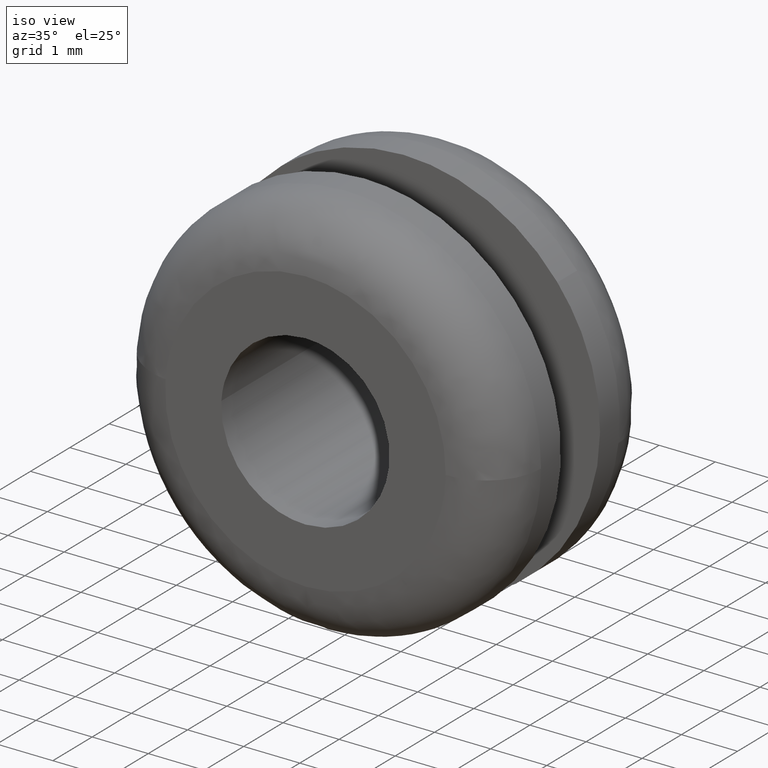
[diagram: clean part render]
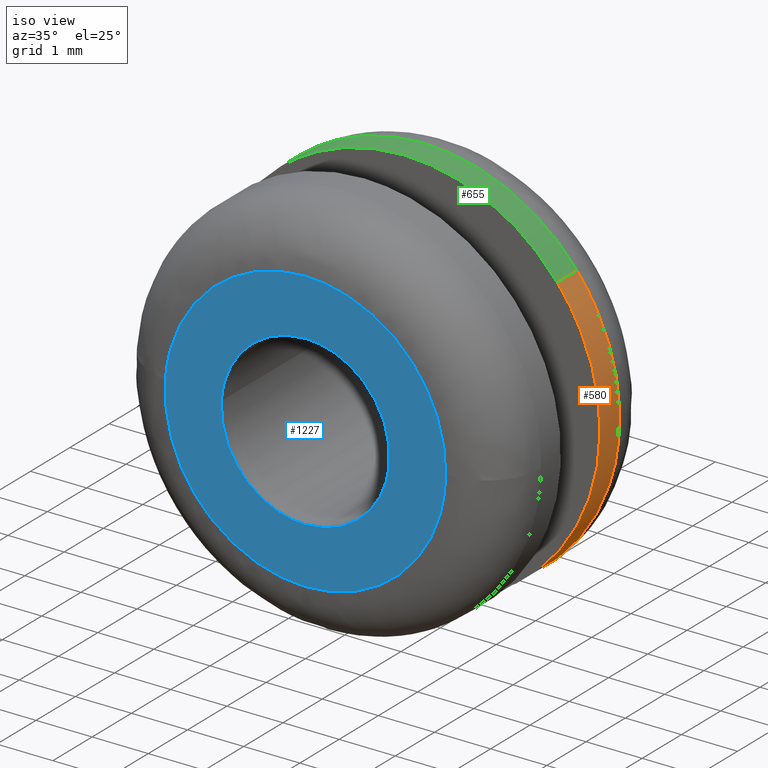
[diagram: same view with three faces highlighted in distinct colors, each labeled with its STEP entity id]
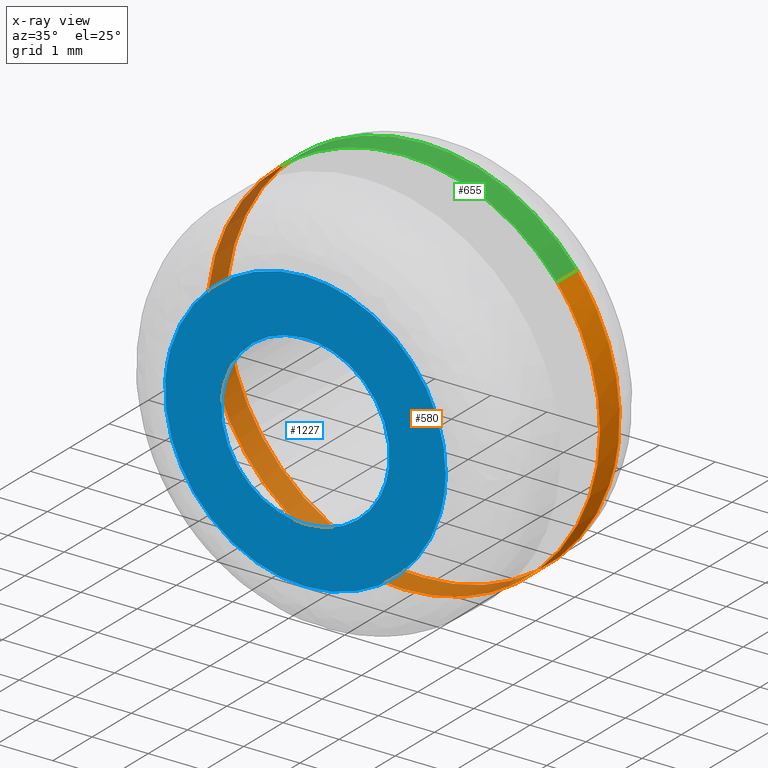
[diagram: x-ray of the same camera — body ghosted, the three highlighted faces saturated]
A machine part, iso view with three faces highlighted in distinct colors.
The next image is the same camera in x-ray (body ghosted, the three faces saturated) — at least one of them is partly hidden behind the body in this view.
Their STEP definitions:

[orange] entity #580 — the highlighted face is a freeform B-spline surface patch.
#446=CARTESIAN_POINT('',(-2.178801228231668,3.012500000007188,2.739128548983447));
#447=CARTESIAN_POINT('',(-4.917929777215115,3.012500000007187,0.560327320751779));
#448=CARTESIAN_POINT('',(-2.739128548983448,3.012500000007188,-2.178801228231668));
#449=CARTESIAN_POINT('',(-0.560327320751780,3.012500000007187,-4.917929777215116));
#450=CARTESIAN_POINT('',(2.178801228231668,3.012500000007188,-2.739128548983448));
#451=CARTESIAN_POINT('',(4.917929777215115,3.012500000007187,-0.560327320751780));
#452=CARTESIAN_POINT('',(2.739128548983448,3.012500000007188,2.178801228231667));
#453=CARTESIAN_POINT('',(-2.178801228231668,2.487187499999820,2.739128548983447));
#454=CARTESIAN_POINT('',(-4.917929777215115,2.487187499999820,0.560327320751779));
#455=CARTESIAN_POINT('',(-2.739128548983448,2.487187499999820,-2.178801228231668));
#456=CARTESIAN_POINT('',(-0.560327320751780,2.487187499999820,-4.917929777215116));
#457=CARTESIAN_POINT('',(2.178801228231668,2.487187499999820,-2.739128548983448));
#458=CARTESIAN_POINT('',(4.917929777215115,2.487187499999820,-0.560327320751780));
#459=CARTESIAN_POINT('',(2.739128548983448,2.487187499999820,2.178801228231667));
#467=(BOUNDED_SURFACE()B_SPLINE_SURFACE(2,1,((#446,#453),(#447,#454),(#448,#455),(#449,#456),(#450,#457),(#451,#458),(#452,#459)),.UNSPECIFIED.,.F.,.F.,.U.)B_SPLINE_SURFACE_WITH_KNOTS((3,2,2,3),(2,2),(0.0,5.798989873223329,11.597979746446660,17.396969619669989),(0.0,1.0),.UNSPECIFIED.)GEOMETRIC_REPRESENTATION_ITEM()RATIONAL_B_SPLINE_SURFACE(((1.0,1.0),(0.707106781186548,0.707106781186548),(1.0,1.0),(0.707106781186548,0.707106781186548),(1.0,1.0),(0.707106781186548,0.707106781186548),(1.0,1.0)))REPRESENTATION_ITEM('')SURFACE());
#468=CARTESIAN_POINT('',(-2.178800832572884,3.000000000001514,2.739128863704560));
#469=VERTEX_POINT('',#468);
#470=CARTESIAN_POINT('',(-3.499999999999999,3.000000000007013,6.637321E-016));
#471=VERTEX_POINT('',#470);
#472=CARTESIAN_POINT('',(-2.178800832572885,3.000000000001514,2.739128863704560));
#473=CARTESIAN_POINT('',(-3.499999999999992,3.000000000003630,1.688200216047647));
#474=CARTESIAN_POINT('',(-3.499999999999999,3.000000000007013,6.637321E-016));
#482=(BOUNDED_CURVE()B_SPLINE_CURVE(2,(#472,#473,#474),.UNSPECIFIED.,.F.,.U.)B_SPLINE_CURVE_WITH_KNOTS((3,3),(0.607863833660169,0.749999999999999),.UNSPECIFIED.)CURVE()GEOMETRIC_REPRESENTATION_ITEM()RATIONAL_B_SPLINE_CURVE((0.856305632691425,0.833477122923691,0.999999999999998))REPRESENTATION_ITEM(''));
#483=EDGE_CURVE('',#469,#471,#482,.T.);
#484=ORIENTED_EDGE('',*,*,#483,.T.);
#485=CARTESIAN_POINT('',(0.0,3.0,-3.500000000000000));
#486=VERTEX_POINT('',#485);
#487=CARTESIAN_POINT('',(-3.500000000000000,3.000000000007014,6.637321E-016));
#488=CARTESIAN_POINT('',(-3.500000000000001,3.0,-3.500000000000000));
#489=CARTESIAN_POINT('',(0.0,3.0,-3.500000000000000));
#497=(BOUNDED_CURVE()B_SPLINE_CURVE(2,(#487,#488,#489),.UNSPECIFIED.,.F.,.U.)B_SPLINE_CURVE_WITH_KNOTS((3,3),(0.750000000000000,1.0),.UNSPECIFIED.)CURVE()GEOMETRIC_REPRESENTATION_ITEM()RATIONAL_B_SPLINE_CURVE((1.0,0.707106781186547,1.0))REPRESENTATION_ITEM(''));
#498=EDGE_CURVE('',#471,#486,#497,.T.);
#499=ORIENTED_EDGE('',*,*,#498,.T.);
#500=CARTESIAN_POINT('',(3.476590735747605,3.000000000006980,-0.404124802646315));
#501=VERTEX_POINT('',#500);
#502=CARTESIAN_POINT('',(0.0,3.0,-3.500000000000000));
#503=CARTESIAN_POINT('',(3.116720952891494,3.0,-3.500000000000002));
#504=CARTESIAN_POINT('',(3.476590735747605,3.000000000006981,-0.404124802646315));
#512=(BOUNDED_CURVE()B_SPLINE_CURVE(2,(#502,#503,#504),.UNSPECIFIED.,.F.,.U.)B_SPLINE_CURVE_WITH_KNOTS((3,3),(0.0,0.229999999999849),.UNSPECIFIED.)CURVE()GEOMETRIC_REPRESENTATION_ITEM()RATIONAL_B_SPLINE_CURVE((1.0,0.730538238691801,0.956886118190362))REPRESENTATION_ITEM(''));
#513=EDGE_CURVE('',#486,#501,#512,.T.);
#514=ORIENTED_EDGE('',*,*,#513,.T.);
#515=CARTESIAN_POINT('',(2.739128864374870,2.999999999999987,2.178800831730190));
#516=VERTEX_POINT('',#515);
#517=CARTESIAN_POINT('',(3.476590735747605,3.000000000006981,-0.404124802646315));
#518=CARTESIAN_POINT('',(3.500000000000000,3.000000000000000,-0.202740401844141));
#519=CARTESIAN_POINT('',(3.500000000000000,3.0,-3.061516E-016));
#520=CARTESIAN_POINT('',(3.500000000000000,3.000000000000000,1.222254148548687));
#521=CARTESIAN_POINT('',(2.739128864374871,2.999999999999988,2.178800831730190));
#529=(BOUNDED_CURVE()B_SPLINE_CURVE(2,(#517,#518,#519,#520,#521),.UNSPECIFIED.,.F.,.U.)B_SPLINE_CURVE_WITH_KNOTS((3,2,3),(0.229999999999849,0.250000000000000,0.357863833567029),.UNSPECIFIED.)CURVE()GEOMETRIC_REPRESENTATION_ITEM()RATIONAL_B_SPLINE_CURVE((0.956886118190362,0.976568542494746,1.0,0.873629658371978,0.856305632721344))REPRESENTATION_ITEM(''));
#530=EDGE_CURVE('',#501,#516,#529,.T.);
#531=ORIENTED_EDGE('',*,*,#530,.T.);
#532=CARTESIAN_POINT('',(2.739128914882338,2.500000000000000,2.178800768233560));
#533=VERTEX_POINT('',#532);
#534=CARTESIAN_POINT('',(2.739128864374870,2.999999999999987,2.178800831730190));
#535=CARTESIAN_POINT('',(2.739128914882338,2.500000000000000,2.178800768233560));
#536=QUASI_UNIFORM_CURVE('',1,(#534,#535),.UNSPECIFIED.,.F.,.U.);
#537=EDGE_CURVE('',#516,#533,#536,.T.);
#538=ORIENTED_EDGE('',*,*,#537,.T.);
#539=CARTESIAN_POINT('',(0.0,2.500000000000000,-3.500000000000000));
#540=VERTEX_POINT('',#539);
#541=CARTESIAN_POINT('',(0.0,2.500000000000000,-3.500000000000000));
#542=CARTESIAN_POINT('',(3.500000000000000,2.500000000000000,-3.500000000000001));
#543=CARTESIAN_POINT('',(3.500000000000000,2.500000000000000,-3.061516E-016));
#544=CARTESIAN_POINT('',(3.500000000000000,2.500000000000000,1.222254057519584));
#545=CARTESIAN_POINT('',(2.739128914882338,2.500000000000000,2.178800768233560));
#553=(BOUNDED_CURVE()B_SPLINE_CURVE(2,(#541,#542,#543,#544,#545),.UNSPECIFIED.,.F.,.U.)B_SPLINE_CURVE_WITH_KNOTS((3,2,3),(0.0,0.250000000000000,0.357863826548889),.UNSPECIFIED.)CURVE()GEOMETRIC_REPRESENTATION_ITEM()RATIONAL_B_SPLINE_CURVE((1.0,0.707106781186547,1.0,0.873629666594239,0.856305634975713))REPRESENTATION_ITEM(''));
#554=EDGE_CURVE('',#540,#533,#553,.T.);
#555=ORIENTED_EDGE('',*,*,#554,.F.);
#556=CARTESIAN_POINT('',(-2.178800837339518,2.500000000000000,2.739128859913013));
#557=VERTEX_POINT('',#556);
#558=CARTESIAN_POINT('',(-2.178800837339518,2.500000000000000,2.739128859913013));
#559=CARTESIAN_POINT('',(-3.500000000000000,2.500000000000000,1.688200208539917));
#560=CARTESIAN_POINT('',(-3.500000000000000,2.500000000000000,-3.061516E-016));
#561=CARTESIAN_POINT('',(-3.500000000000000,2.500000000000000,-3.500000000000001));
#562=CARTESIAN_POINT('',(0.0,2.500000000000000,-3.500000000000000));
#570=(BOUNDED_CURVE()B_SPLINE_CURVE(2,(#558,#559,#560,#561,#562),.UNSPECIFIED.,.F.,.U.)B_SPLINE_CURVE_WITH_KNOTS((3,2,3),(0.607863834187015,0.750000000000000,1.0),.UNSPECIFIED.)CURVE()GEOMETRIC_REPRESENTATION_ITEM()RATIONAL_B_SPLINE_CURVE((0.856305632522192,0.833477123540928,1.0,0.707106781186547,1.0))REPRESENTATION_ITEM(''));
#571=EDGE_CURVE('',#557,#540,#570,.T.);
#572=ORIENTED_EDGE('',*,*,#571,.F.);
#573=CARTESIAN_POINT('',(-2.178800832572884,3.000000000001514,2.739128863704560));
#574=CARTESIAN_POINT('',(-2.178800837339518,2.500000000000000,2.739128859913013));
#575=QUASI_UNIFORM_CURVE('',1,(#573,#574),.UNSPECIFIED.,.F.,.U.);
#576=EDGE_CURVE('',#469,#557,#575,.T.);
#577=ORIENTED_EDGE('',*,*,#576,.F.);
#578=EDGE_LOOP('',(#484,#499,#514,#531,#538,#555,#572,#577));
#579=FACE_OUTER_BOUND('',#578,.T.);
#580=ADVANCED_FACE('',(#579),#467,.T.);

[blue] entity #1227 — the highlighted face is a freeform B-spline surface patch.
#701=CARTESIAN_POINT('',(1.489514386011977,-3.507253E-016,-0.177050540419096));
#702=VERTEX_POINT('',#701);
#708=CARTESIAN_POINT('',(0.0,-2.755364E-016,1.500000000000000));
#709=VERTEX_POINT('',#708);
#710=CARTESIAN_POINT('',(1.489514386011978,-3.507253E-016,-0.177050540419096));
#711=CARTESIAN_POINT('',(1.500000000000000,-2.755364E-016,-0.088835359332130));
#712=CARTESIAN_POINT('',(1.500000000000000,-2.755364E-016,-3.061516E-016));
#713=CARTESIAN_POINT('',(1.500000000000000,-2.755364E-016,1.500000000000000));
#714=CARTESIAN_POINT('',(0.0,-2.755364E-016,1.500000000000000));
#722=(BOUNDED_CURVE()B_SPLINE_CURVE(2,(#710,#711,#712,#713,#714),.UNSPECIFIED.,.F.,.U.)B_SPLINE_CURVE_WITH_KNOTS((3,2,3),(0.229562657679458,0.250000000000000,0.500000000000000),.UNSPECIFIED.)CURVE()GEOMETRIC_REPRESENTATION_ITEM()RATIONAL_B_SPLINE_CURVE((0.956027115156815,0.976056164094976,1.0,0.707106781186548,1.0))REPRESENTATION_ITEM(''));
#723=EDGE_CURVE('',#702,#709,#722,.T.);
#725=CARTESIAN_POINT('',(-1.497202336252633,-1.100126E-016,0.091570542831748));
#726=VERTEX_POINT('',#725);
#727=CARTESIAN_POINT('',(0.0,-2.755364E-016,1.500000000000000));
#728=CARTESIAN_POINT('',(-1.411061240418287,-2.755364E-016,1.500000000000000));
#729=CARTESIAN_POINT('',(-1.497202336252633,-1.100126E-016,0.091570542831748));
#737=(BOUNDED_CURVE()B_SPLINE_CURVE(2,(#727,#728,#729),.UNSPECIFIED.,.F.,.U.)B_SPLINE_CURVE_WITH_KNOTS((3,3),(0.500000000000000,0.739333223444024),.UNSPECIFIED.)CURVE()GEOMETRIC_REPRESENTATION_ITEM()RATIONAL_B_SPLINE_CURVE((1.0,0.719603687265923,0.976072601479568))REPRESENTATION_ITEM(''));
#738=EDGE_CURVE('',#709,#726,#737,.T.);
#812=CARTESIAN_POINT('',(0.0,-2.755364E-016,-1.500000000000000));
#813=VERTEX_POINT('',#812);
#814=CARTESIAN_POINT('',(-1.497202336252633,-1.100126E-016,0.091570542831748));
#815=CARTESIAN_POINT('',(-1.500000000000000,-2.755364E-016,0.045828008535265));
#816=CARTESIAN_POINT('',(-1.500000000000000,-2.755364E-016,-3.061516E-016));
#817=CARTESIAN_POINT('',(-1.500000000000000,-2.755364E-016,-1.500000000000000));
#818=CARTESIAN_POINT('',(0.0,-2.755364E-016,-1.500000000000000));
#826=(BOUNDED_CURVE()B_SPLINE_CURVE(2,(#814,#815,#816,#817,#818),.UNSPECIFIED.,.F.,.U.)B_SPLINE_CURVE_WITH_KNOTS((3,2,3),(0.739333223444024,0.750000000000000,1.0),.UNSPECIFIED.)CURVE()GEOMETRIC_REPRESENTATION_ITEM()RATIONAL_B_SPLINE_CURVE((0.976072601479568,0.987503093920625,1.0,0.707106781186548,1.0))REPRESENTATION_ITEM(''));
#827=EDGE_CURVE('',#726,#813,#826,.T.);
#829=CARTESIAN_POINT('',(0.0,-2.755364E-016,-1.500000000000000));
#830=CARTESIAN_POINT('',(1.332263250920841,-2.755364E-016,-1.500000000000001));
#831=CARTESIAN_POINT('',(1.489514386011977,-3.507253E-016,-0.177050540419096));
#839=(BOUNDED_CURVE()B_SPLINE_CURVE(2,(#829,#830,#831),.UNSPECIFIED.,.F.,.U.)B_SPLINE_CURVE_WITH_KNOTS((3,3),(0.0,0.229562657679458),.UNSPECIFIED.)CURVE()GEOMETRIC_REPRESENTATION_ITEM()RATIONAL_B_SPLINE_CURVE((1.0,0.731050617091572,0.956027115156815))REPRESENTATION_ITEM(''));
#840=EDGE_CURVE('',#813,#702,#839,.T.);
#1033=CARTESIAN_POINT('',(2.499802610520170,-2.537659E-017,-0.031415099709199));
#1034=VERTEX_POINT('',#1033);
#1048=CARTESIAN_POINT('',(0.0,-4.592274E-016,-2.500000000000000));
#1049=VERTEX_POINT('',#1048);
#1050=CARTESIAN_POINT('',(0.0,-4.592274E-016,-2.500000000000000));
#1051=CARTESIAN_POINT('',(2.468779824766935,-4.592274E-016,-2.500000000000000));
#1052=CARTESIAN_POINT('',(2.499802610520170,-2.537659E-017,-0.031415099709199));
#1060=(BOUNDED_CURVE()B_SPLINE_CURVE(2,(#1050,#1051,#1052),.UNSPECIFIED.,.F.,.U.)B_SPLINE_CURVE_WITH_KNOTS((3,3),(0.0,0.247784295921632),.UNSPECIFIED.)CURVE()GEOMETRIC_REPRESENTATION_ITEM()RATIONAL_B_SPLINE_CURVE((1.0,0.709702639984353,0.994854295643791))REPRESENTATION_ITEM(''));
#1061=EDGE_CURVE('',#1049,#1034,#1060,.T.);
#1063=CARTESIAN_POINT('',(-2.493914184636278,-2.067672E-017,0.174333128946536));
#1064=VERTEX_POINT('',#1063);
#1065=CARTESIAN_POINT('',(-2.493914184636278,-2.067672E-017,0.174333128946536));
#1066=CARTESIAN_POINT('',(-2.500000000000000,-4.592274E-016,0.087272789692242));
#1067=CARTESIAN_POINT('',(-2.500000000000000,-4.592274E-016,-3.061516E-016));
#1068=CARTESIAN_POINT('',(-2.500000000000000,-4.592274E-016,-2.500000000000000));
#1069=CARTESIAN_POINT('',(0.0,-4.592274E-016,-2.500000000000000));
#1077=(BOUNDED_CURVE()B_SPLINE_CURVE(2,(#1065,#1066,#1067,#1068,#1069),.UNSPECIFIED.,.F.,.U.)B_SPLINE_CURVE_WITH_KNOTS((3,2,3),(0.737833686534384,0.750000000000000,1.0),.UNSPECIFIED.)CURVE()GEOMETRIC_REPRESENTATION_ITEM()RATIONAL_B_SPLINE_CURVE((0.972879876385479,0.985746277151849,1.0,0.707106781186548,1.0))REPRESENTATION_ITEM(''));
#1078=EDGE_CURVE('',#1064,#1049,#1077,.T.);
#1121=CARTESIAN_POINT('',(0.0,-4.592274E-016,2.500000000000000));
#1122=VERTEX_POINT('',#1121);
#1123=CARTESIAN_POINT('',(0.0,-4.592274E-016,2.500000000000000));
#1124=CARTESIAN_POINT('',(-2.331342118156340,-4.592274E-016,2.500000000000000));
#1125=CARTESIAN_POINT('',(-2.493914184636279,-2.067672E-017,0.174333128946536));
#1133=(BOUNDED_CURVE()B_SPLINE_CURVE(2,(#1123,#1124,#1125),.UNSPECIFIED.,.F.,.U.)B_SPLINE_CURVE_WITH_KNOTS((3,3),(0.500000000000000,0.737833686534383),.UNSPECIFIED.)CURVE()GEOMETRIC_REPRESENTATION_ITEM()RATIONAL_B_SPLINE_CURVE((1.0,0.721360504034699,0.972879876385478))REPRESENTATION_ITEM(''));
#1134=EDGE_CURVE('',#1122,#1064,#1133,.T.);
#1136=CARTESIAN_POINT('',(2.499802610520170,-2.537659E-017,-0.031415099709199));
#1137=CARTESIAN_POINT('',(2.500000000000000,-4.592274E-016,-0.015708169980409));
#1138=CARTESIAN_POINT('',(2.500000000000000,-4.592274E-016,-3.061516E-016));
#1139=CARTESIAN_POINT('',(2.500000000000000,-4.592274E-016,2.500000000000000));
#1140=CARTESIAN_POINT('',(0.0,-4.592274E-016,2.500000000000000));
#1148=(BOUNDED_CURVE()B_SPLINE_CURVE(2,(#1136,#1137,#1138,#1139,#1140),.UNSPECIFIED.,.F.,.U.)B_SPLINE_CURVE_WITH_KNOTS((3,2,3),(0.247784295921632,0.250000000000000,0.500000000000000),.UNSPECIFIED.)CURVE()GEOMETRIC_REPRESENTATION_ITEM()RATIONAL_B_SPLINE_CURVE((0.994854295643791,0.997404141202195,1.0,0.707106781186548,1.0))REPRESENTATION_ITEM(''));
#1149=EDGE_CURVE('',#1034,#1122,#1148,.T.);
#1210=CARTESIAN_POINT('',(-2.749440738688285,-3.673819E-016,-2.749749990309030));
#1211=CARTESIAN_POINT('',(-2.749440738688285,-3.673819E-016,2.749750124419480));
#1212=CARTESIAN_POINT('',(2.749528632141366,-3.673819E-016,-2.749749990309030));
#1213=CARTESIAN_POINT('',(2.749528632141366,-3.673819E-016,2.749750124419480));
#1214=B_SPLINE_SURFACE_WITH_KNOTS('',1,1,((#1210,#1212),(#1211,#1213)),.UNSPECIFIED.,.F.,.F.,.U.,(2,2),(2,2),(0.0,5.499500114728511),(0.0,5.498969370829650),.UNSPECIFIED.);
#1215=ORIENTED_EDGE('',*,*,#1061,.T.);
#1216=ORIENTED_EDGE('',*,*,#1149,.T.);
#1217=ORIENTED_EDGE('',*,*,#1134,.T.);
#1218=ORIENTED_EDGE('',*,*,#1078,.T.);
#1219=EDGE_LOOP('',(#1215,#1216,#1217,#1218));
#1220=FACE_OUTER_BOUND('',#1219,.T.);
#1221=ORIENTED_EDGE('',*,*,#738,.F.);
#1222=ORIENTED_EDGE('',*,*,#723,.F.);
#1223=ORIENTED_EDGE('',*,*,#840,.F.);
#1224=ORIENTED_EDGE('',*,*,#827,.F.);
#1225=EDGE_LOOP('',(#1221,#1222,#1223,#1224));
#1226=FACE_BOUND('',#1225,.T.);
#1227=ADVANCED_FACE('',(#1220,#1226),#1214,.F.);

[green] entity #655 — the highlighted face is a freeform B-spline surface patch.
#468=CARTESIAN_POINT('',(-2.178800832572884,3.000000000001514,2.739128863704560));
#469=VERTEX_POINT('',#468);
#515=CARTESIAN_POINT('',(2.739128864374870,2.999999999999987,2.178800831730190));
#516=VERTEX_POINT('',#515);
#532=CARTESIAN_POINT('',(2.739128914882338,2.500000000000000,2.178800768233560));
#533=VERTEX_POINT('',#532);
#534=CARTESIAN_POINT('',(2.739128864374870,2.999999999999987,2.178800831730190));
#535=CARTESIAN_POINT('',(2.739128914882338,2.500000000000000,2.178800768233560));
#536=QUASI_UNIFORM_CURVE('',1,(#534,#535),.UNSPECIFIED.,.F.,.U.);
#537=EDGE_CURVE('',#516,#533,#536,.T.);
#556=CARTESIAN_POINT('',(-2.178800837339518,2.500000000000000,2.739128859913013));
#557=VERTEX_POINT('',#556);
#573=CARTESIAN_POINT('',(-2.178800832572884,3.000000000001514,2.739128863704560));
#574=CARTESIAN_POINT('',(-2.178800837339518,2.500000000000000,2.739128859913013));
#575=QUASI_UNIFORM_CURVE('',1,(#573,#574),.UNSPECIFIED.,.F.,.U.);
#576=EDGE_CURVE('',#469,#557,#575,.T.);
#581=CARTESIAN_POINT('',(2.739128548983448,3.012500000007188,2.178801228231667));
#582=CARTESIAN_POINT('',(0.560327320751780,3.012500000007187,4.917929777215115));
#583=CARTESIAN_POINT('',(-2.178801228231668,3.012500000007188,2.739128548983447));
#584=CARTESIAN_POINT('',(2.739128548983448,2.487187499999820,2.178801228231667));
#585=CARTESIAN_POINT('',(0.560327320751780,2.487187499999820,4.917929777215115));
#586=CARTESIAN_POINT('',(-2.178801228231668,2.487187499999820,2.739128548983447));
#594=(BOUNDED_SURFACE()B_SPLINE_SURFACE(2,1,((#581,#584),(#582,#585),(#583,#586)),.UNSPECIFIED.,.F.,.F.,.U.)B_SPLINE_SURFACE_WITH_KNOTS((3,3),(2,2),(0.0,5.798989873223329),(0.0,1.0),.UNSPECIFIED.)GEOMETRIC_REPRESENTATION_ITEM()RATIONAL_B_SPLINE_SURFACE(((1.0,1.0),(0.707106781186548,0.707106781186548),(1.0,1.0)))REPRESENTATION_ITEM('')SURFACE());
#595=CARTESIAN_POINT('',(0.0,3.0,3.500000000000000));
#596=VERTEX_POINT('',#595);
#597=CARTESIAN_POINT('',(0.0,3.0,3.500000000000000));
#598=CARTESIAN_POINT('',(-1.222254149756769,3.000000000000001,3.500000000000000));
#599=CARTESIAN_POINT('',(-2.178800832572884,3.000000000001514,2.739128863704560));
#607=(BOUNDED_CURVE()B_SPLINE_CURVE(2,(#597,#598,#599),.UNSPECIFIED.,.F.,.U.)B_SPLINE_CURVE_WITH_KNOTS((3,3),(0.500000000000000,0.607863833660169),.UNSPECIFIED.)CURVE()GEOMETRIC_REPRESENTATION_ITEM()RATIONAL_B_SPLINE_CURVE((1.0,0.873629658262857,0.856305632691425))REPRESENTATION_ITEM(''));
#608=EDGE_CURVE('',#596,#469,#607,.T.);
#609=ORIENTED_EDGE('',*,*,#608,.T.);
#610=ORIENTED_EDGE('',*,*,#576,.T.);
#611=CARTESIAN_POINT('',(0.0,2.500000000000000,3.500000000000000));
#612=VERTEX_POINT('',#611);
#613=CARTESIAN_POINT('',(0.0,2.500000000000000,3.500000000000000));
#614=CARTESIAN_POINT('',(-1.222254156590240,2.500000000000000,3.500000000000001));
#615=CARTESIAN_POINT('',(-2.178800837339517,2.500000000000000,2.739128859913012));
#623=(BOUNDED_CURVE()B_SPLINE_CURVE(2,(#613,#614,#615),.UNSPECIFIED.,.F.,.U.)B_SPLINE_CURVE_WITH_KNOTS((3,3),(0.500000000000000,0.607863834187014),.UNSPECIFIED.)CURVE()GEOMETRIC_REPRESENTATION_ITEM()RATIONAL_B_SPLINE_CURVE((1.0,0.873629657645620,0.856305632522192))REPRESENTATION_ITEM(''));
#624=EDGE_CURVE('',#612,#557,#623,.T.);
#625=ORIENTED_EDGE('',*,*,#624,.F.);
#626=CARTESIAN_POINT('',(2.739128914882338,2.500000000000000,2.178800768233560));
#627=CARTESIAN_POINT('',(1.688200317385910,2.500000000000000,3.500000000000000));
#628=CARTESIAN_POINT('',(0.0,2.500000000000000,3.500000000000000));
#636=(BOUNDED_CURVE()B_SPLINE_CURVE(2,(#626,#627,#628),.UNSPECIFIED.,.F.,.U.)B_SPLINE_CURVE_WITH_KNOTS((3,3),(0.357863826548889,0.500000000000000),.UNSPECIFIED.)CURVE()GEOMETRIC_REPRESENTATION_ITEM()RATIONAL_B_SPLINE_CURVE((0.856305634975713,0.833477114592308,1.0))REPRESENTATION_ITEM(''));
#637=EDGE_CURVE('',#533,#612,#636,.T.);
#638=ORIENTED_EDGE('',*,*,#637,.F.);
#639=ORIENTED_EDGE('',*,*,#537,.F.);
#640=CARTESIAN_POINT('',(2.739128864374870,2.999999999999987,2.178800831730190));
#641=CARTESIAN_POINT('',(1.688200217374941,2.999999999999999,3.500000000000000));
#642=CARTESIAN_POINT('',(0.0,3.0,3.500000000000000));
#650=(BOUNDED_CURVE()B_SPLINE_CURVE(2,(#640,#641,#642),.UNSPECIFIED.,.F.,.U.)B_SPLINE_CURVE_WITH_KNOTS((3,3),(0.357863833567028,0.500000000000000),.UNSPECIFIED.)CURVE()GEOMETRIC_REPRESENTATION_ITEM()RATIONAL_B_SPLINE_CURVE((0.856305632721344,0.833477122814569,1.0))REPRESENTATION_ITEM(''));
#651=EDGE_CURVE('',#516,#596,#650,.T.);
#652=ORIENTED_EDGE('',*,*,#651,.T.);
#653=EDGE_LOOP('',(#609,#610,#625,#638,#639,#652));
#654=FACE_OUTER_BOUND('',#653,.T.);
#655=ADVANCED_FACE('',(#654),#594,.T.);